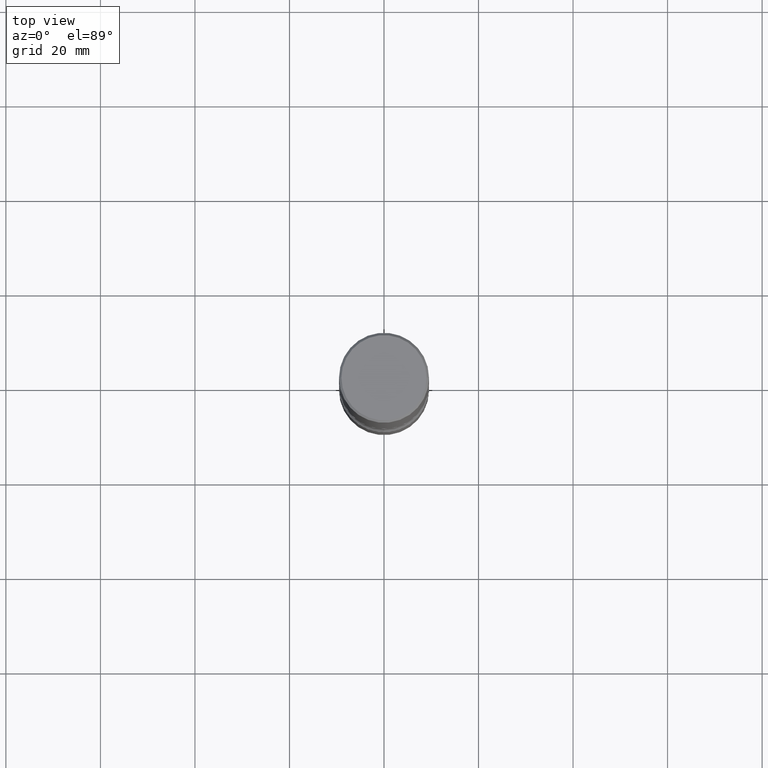
[diagram: clean part render]
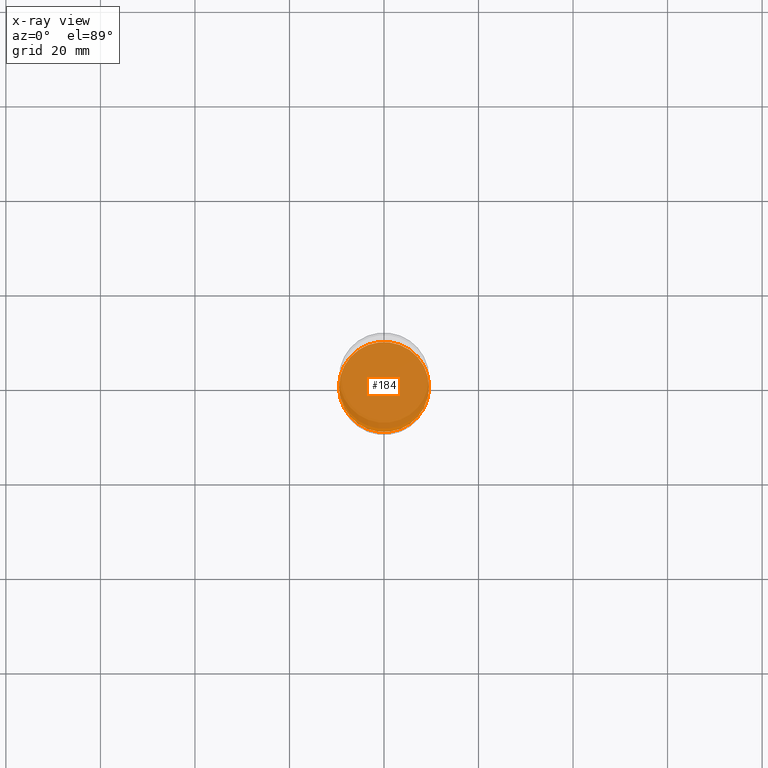
[diagram: x-ray — body ghosted, one internal face saturated and labeled with its STEP entity id]
A machine part, top view, then the same camera in x-ray: the body is ghosted and one INTERNAL B-rep face — a face not visible from any outside direction — is saturated and labeled: STEP entity #184.
In plain terms, the highlighted planar face has unit normal (0, -0, -1).
Its self-contained STEP definition (entity closure, byte-faithful):
#21 = ORIENTED_EDGE ( 'NONE', *, *, #386, .T. ) ;
#45 = DIRECTION ( 'NONE',  ( 1.000000000000000000, -6.982962677686265922E-15, 0.000000000000000000 ) ) ;
#60 = CARTESIAN_POINT ( 'NONE',  ( 0.3750000000000003886, -1.833027702892650691E-14, -4.499999999999999112 ) ) ;
#65 = DIRECTION ( 'NONE',  ( -2.445468806185136597E-29, 3.491481338843145583E-15, 1.000000000000000000 ) ) ;
#76 = VERTEX_POINT ( 'NONE', #60 ) ;
#92 = CARTESIAN_POINT ( 'NONE',  ( -0.3750000000000003886, -1.550862510957819116E-14, -4.499999999999999112 ) ) ;
#122 = PLANE ( 'NONE',  #247 ) ;
#171 = FACE_OUTER_BOUND ( 'NONE', #274, .T. ) ;
#176 = CIRCLE ( 'NONE', #314, 0.3750000000000003886 ) ;
#184 = ADVANCED_FACE ( 'NONE', ( #171 ), #122, .F. ) ;
#224 = CIRCLE ( 'NONE', #403, 0.3750000000000003886 ) ;
#237 = DIRECTION ( 'NONE',  ( 1.000000000000000000, -6.982962677686265922E-15, 0.000000000000000000 ) ) ;
#247 = AXIS2_PLACEMENT_3D ( 'NONE', #459, #517, #555 ) ;
#274 = EDGE_LOOP ( 'NONE', ( #21, #407 ) ) ;
#314 = AXIS2_PLACEMENT_3D ( 'NONE', #522, #525, #45 ) ;
#362 = CARTESIAN_POINT ( 'NONE',  ( 1.100460962783311244E-28, -1.571166602479415374E-14, -4.499999999999999112 ) ) ;
#386 = EDGE_CURVE ( 'NONE', #76, #480, #176, .T. ) ;
#403 = AXIS2_PLACEMENT_3D ( 'NONE', #362, #65, #237 ) ;
#407 = ORIENTED_EDGE ( 'NONE', *, *, #488, .T. ) ;
#459 = CARTESIAN_POINT ( 'NONE',  ( 1.100460962783311244E-28, -1.571166602479415374E-14, -4.499999999999999112 ) ) ;
#480 = VERTEX_POINT ( 'NONE', #92 ) ;
#488 = EDGE_CURVE ( 'NONE', #480, #76, #224, .T. ) ;
#517 = DIRECTION ( 'NONE',  ( 2.438088387897960049E-29, -3.491481338843145188E-15, -1.000000000000000000 ) ) ;
#522 = CARTESIAN_POINT ( 'NONE',  ( 1.100460962783311244E-28, -1.571166602479415374E-14, -4.499999999999999112 ) ) ;
#525 = DIRECTION ( 'NONE',  ( -2.445468806185136597E-29, 3.491481338843145583E-15, 1.000000000000000000 ) ) ;
#555 = DIRECTION ( 'NONE',  ( -1.000000000000000000, 6.982962677686265922E-15, -4.876176775795935793E-29 ) ) ;